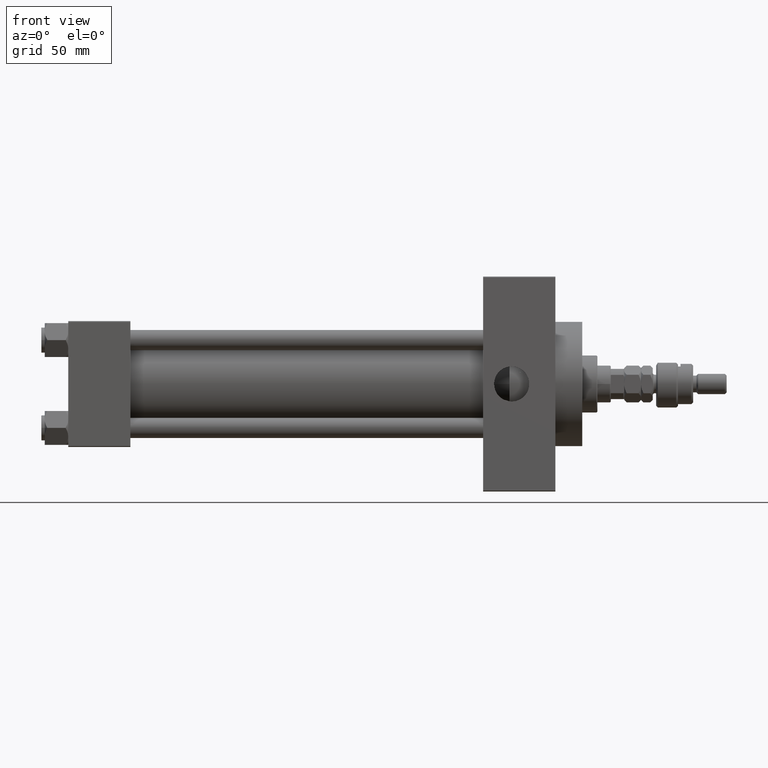
[diagram: clean part render]
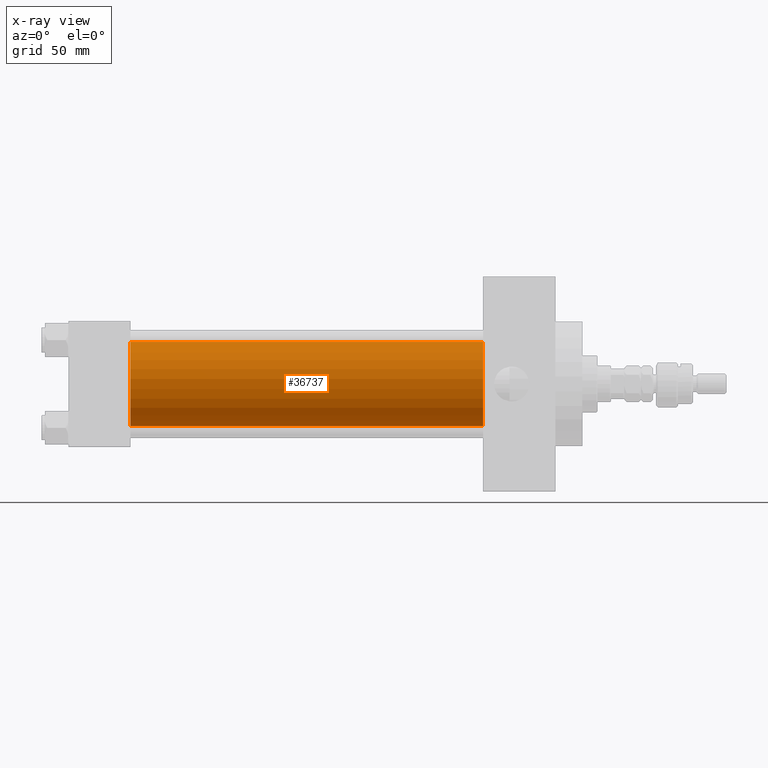
[diagram: x-ray — body ghosted, one internal face saturated and labeled with its STEP entity id]
A machine part, front view, then the same camera in x-ray: the body is ghosted and one INTERNAL B-rep face — a face not visible from any outside direction — is saturated and labeled: STEP entity #36737.
In plain terms, the highlighted cylindrical surface (partial cylindrical patch) has radius 25 mm, axis along (-1, -0, -0).
Its self-contained STEP definition (entity closure, byte-faithful):
#562 = DIRECTION ( 'NONE',  ( 0.000000000000000000, 0.000000000000000000, 1.000000000000000000 ) ) ;
#2651 = DIRECTION ( 'NONE',  ( -1.000000000000000000, -0.000000000000000000, -0.000000000000000000 ) ) ;
#3666 = CIRCLE ( 'NONE', #40863, 25.00000000000000000 ) ;
#4171 = DIRECTION ( 'NONE',  ( 0.000000000000000000, 0.000000000000000000, -1.000000000000000000 ) ) ;
#4957 = DIRECTION ( 'NONE',  ( 0.000000000000000000, 0.000000000000000000, -1.000000000000000000 ) ) ;
#5843 = EDGE_CURVE ( 'NONE', #35217, #47339, #37844, .T. ) ;
#7328 = VECTOR ( 'NONE', #2651, 1000.000000000000000 ) ;
#8242 = DIRECTION ( 'NONE',  ( -1.000000000000000000, -0.000000000000000000, -0.000000000000000000 ) ) ;
#9287 = DIRECTION ( 'NONE',  ( -1.000000000000000000, -0.000000000000000000, -0.000000000000000000 ) ) ;
#9774 = VERTEX_POINT ( 'NONE', #40163 ) ;
#14571 = CARTESIAN_POINT ( 'NONE',  ( 247.0000000000000000, 4.595317839031724996E-16, -25.00000000000000000 ) ) ;
#15655 = FACE_OUTER_BOUND ( 'NONE', #16595, .T. ) ;
#16595 = EDGE_LOOP ( 'NONE', ( #19089, #36577, #26232, #48088 ) ) ;
#19089 = ORIENTED_EDGE ( 'NONE', *, *, #44123, .T. ) ;
#21533 = CARTESIAN_POINT ( 'NONE',  ( 37.00000000000000000, 4.595317839031724996E-16, -25.00000000000000000 ) ) ;
#22715 = CARTESIAN_POINT ( 'NONE',  ( 247.0000000000000000, -2.602085213965210642E-15, 25.00000000000000000 ) ) ;
#26232 = ORIENTED_EDGE ( 'NONE', *, *, #48533, .F. ) ;
#30225 = EDGE_CURVE ( 'NONE', #9774, #39092, #35190, .T. ) ;
#31366 = CIRCLE ( 'NONE', #39839, 25.00000000000000000 ) ;
#31780 = CYLINDRICAL_SURFACE ( 'NONE', #39682, 25.00000000000000000 ) ;
#35190 = LINE ( 'NONE', #14571, #7328 ) ;
#35217 = VERTEX_POINT ( 'NONE', #22715 ) ;
#35461 = VECTOR ( 'NONE', #9287, 1000.000000000000000 ) ;
#35663 = CARTESIAN_POINT ( 'NONE',  ( 247.0000000000000000, -2.602085213965210642E-15, 0.000000000000000000 ) ) ;
#36577 = ORIENTED_EDGE ( 'NONE', *, *, #30225, .T. ) ;
#36737 = ADVANCED_FACE ( 'NONE', ( #15655 ), #31780, .F. ) ;
#36968 = CARTESIAN_POINT ( 'NONE',  ( 37.00000000000000000, -2.602085213965210642E-15, 0.000000000000000000 ) ) ;
#37844 = LINE ( 'NONE', #45539, #35461 ) ;
#39092 = VERTEX_POINT ( 'NONE', #21533 ) ;
#39429 = CARTESIAN_POINT ( 'NONE',  ( 37.00000000000000000, -2.602085213965210642E-15, 25.00000000000000000 ) ) ;
#39682 = AXIS2_PLACEMENT_3D ( 'NONE', #43970, #8242, #562 ) ;
#39839 = AXIS2_PLACEMENT_3D ( 'NONE', #35663, #40684, #4171 ) ;
#40163 = CARTESIAN_POINT ( 'NONE',  ( 247.0000000000000000, 4.595317839031724996E-16, -25.00000000000000000 ) ) ;
#40684 = DIRECTION ( 'NONE',  ( 1.000000000000000000, 0.000000000000000000, 0.000000000000000000 ) ) ;
#40863 = AXIS2_PLACEMENT_3D ( 'NONE', #36968, #41217, #4957 ) ;
#41217 = DIRECTION ( 'NONE',  ( 1.000000000000000000, 0.000000000000000000, 0.000000000000000000 ) ) ;
#43970 = CARTESIAN_POINT ( 'NONE',  ( 247.0000000000000000, -2.602085213965210642E-15, 0.000000000000000000 ) ) ;
#44123 = EDGE_CURVE ( 'NONE', #35217, #9774, #31366, .T. ) ;
#45539 = CARTESIAN_POINT ( 'NONE',  ( 247.0000000000000000, -2.602085213965210642E-15, 25.00000000000000000 ) ) ;
#47339 = VERTEX_POINT ( 'NONE', #39429 ) ;
#48088 = ORIENTED_EDGE ( 'NONE', *, *, #5843, .F. ) ;
#48533 = EDGE_CURVE ( 'NONE', #47339, #39092, #3666, .T. ) ;